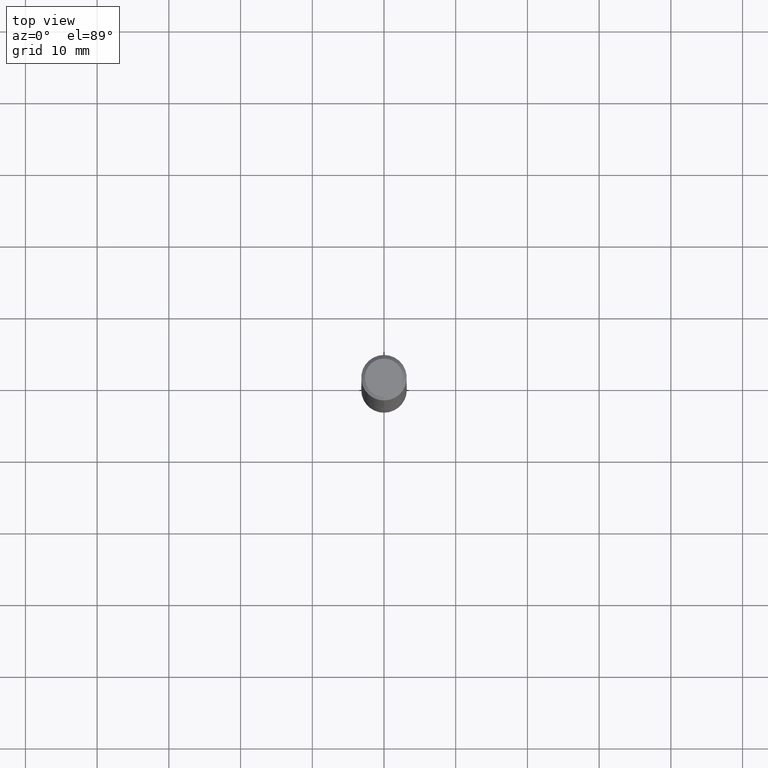
[diagram: clean part render]
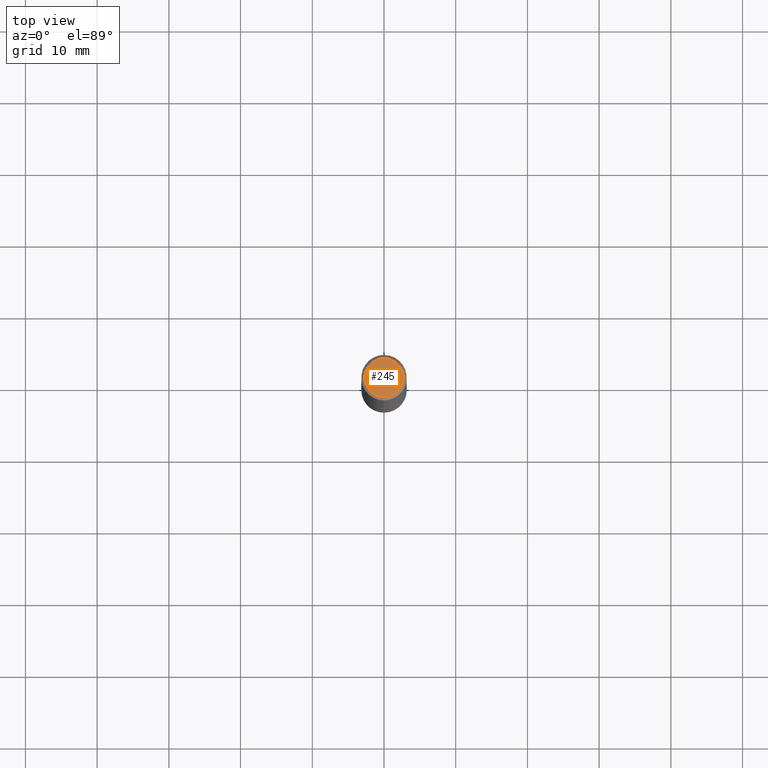
[diagram: same view with one face highlighted and labeled with its STEP entity id]
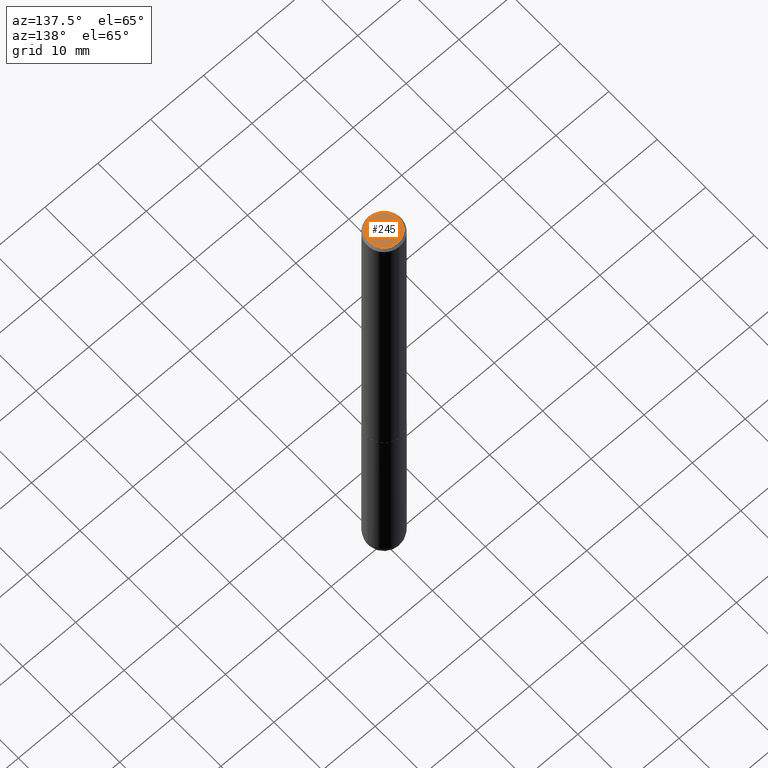
[diagram: same view with one face highlighted and labeled with its STEP entity id]
A machine part, top view. The second image highlights one B-rep face of the part: STEP entity #245.
A second angle (auxiliary view) of the same face is appended — the face is thin or edge-on in the first view.
In plain terms, the highlighted planar face has unit normal (0, -0, -1).
Its self-contained STEP definition (entity closure, byte-faithful):
#24 = DIRECTION ( 'NONE',  ( 2.445231133379232762E-29, -3.491821699828695402E-15, -1.000000000000000000 ) ) ;
#59 = PLANE ( 'NONE',  #167 ) ;
#83 = CARTESIAN_POINT ( 'NONE',  ( 8.030407079339217170E-16, 0.1050000000000002737, -6.440588524350579794E-16 ) ) ;
#118 = DIRECTION ( 'NONE',  ( -6.982962677686266711E-15, -1.000000000000000000, 3.491821699828695796E-15 ) ) ;
#133 = VERTEX_POINT ( 'NONE', #194 ) ;
#139 = DIRECTION ( 'NONE',  ( -6.982962677686266711E-15, -1.000000000000000000, 3.491821699828695796E-15 ) ) ;
#144 = DIRECTION ( 'NONE',  ( -2.445231133379233042E-29, 3.491821699828695796E-15, 1.000000000000000000 ) ) ;
#146 = EDGE_CURVE ( 'NONE', #281, #133, #183, .T. ) ;
#160 = ORIENTED_EDGE ( 'NONE', *, *, #232, .T. ) ;
#167 = AXIS2_PLACEMENT_3D ( 'NONE', #357, #24, #327 ) ;
#183 = CIRCLE ( 'NONE', #329, 0.1050000000000002737 ) ;
#194 = CARTESIAN_POINT ( 'NONE',  ( -7.889572697437268042E-16, -0.1050000000000002737, 8.922370452897002864E-17 ) ) ;
#232 = EDGE_CURVE ( 'NONE', #133, #281, #303, .T. ) ;
#233 = FACE_OUTER_BOUND ( 'NONE', #244, .T. ) ;
#244 = EDGE_LOOP ( 'NONE', ( #275, #160 ) ) ;
#245 = ADVANCED_FACE ( 'NONE', ( #233 ), #59, .F. ) ;
#264 = CARTESIAN_POINT ( 'NONE',  ( 6.783500887765189556E-45, -9.686927046430710315E-31, -2.774175739530439939E-16 ) ) ;
#266 = CARTESIAN_POINT ( 'NONE',  ( 6.783500887765189556E-45, -9.686927046430710315E-31, -2.774175739530439939E-16 ) ) ;
#275 = ORIENTED_EDGE ( 'NONE', *, *, #146, .T. ) ;
#281 = VERTEX_POINT ( 'NONE', #83 ) ;
#303 = CIRCLE ( 'NONE', #353, 0.1050000000000002737 ) ;
#327 = DIRECTION ( 'NONE',  ( 6.982962677686265922E-15, 1.000000000000000000, -3.491821699828695402E-15 ) ) ;
#329 = AXIS2_PLACEMENT_3D ( 'NONE', #264, #352, #139 ) ;
#352 = DIRECTION ( 'NONE',  ( -2.445231133379233042E-29, 3.491821699828695796E-15, 1.000000000000000000 ) ) ;
#353 = AXIS2_PLACEMENT_3D ( 'NONE', #266, #144, #118 ) ;
#357 = CARTESIAN_POINT ( 'NONE',  ( 7.332110811570598979E-16, 0.1050000000000002737, -5.053500654585360564E-16 ) ) ;